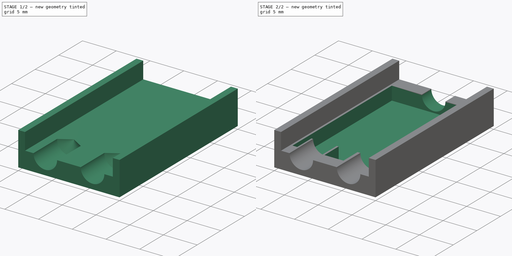
[diagram: build sequence overview — one tinted view per stage of 2, left to right]
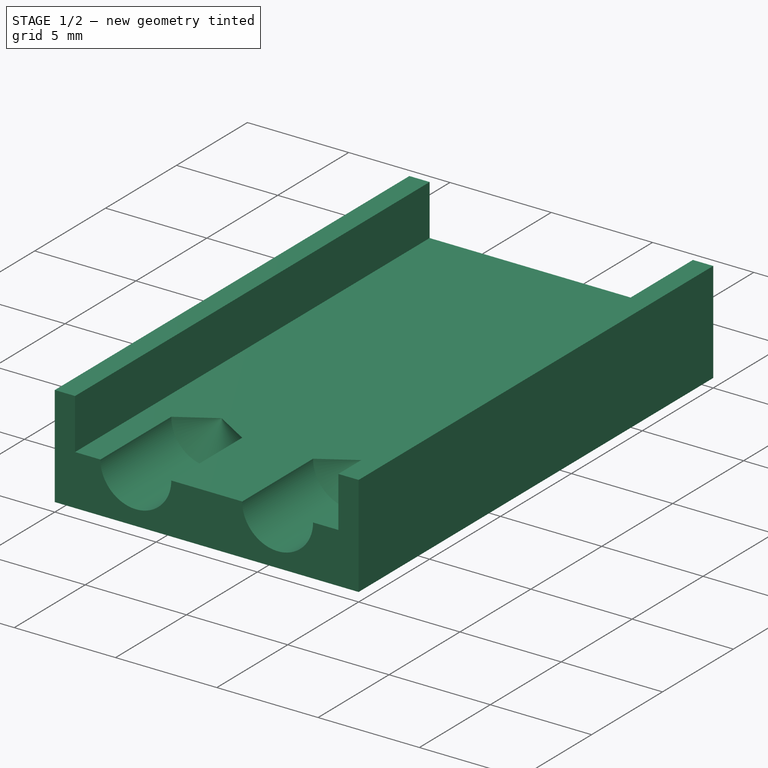
[diagram: stage 1 of 2 — iso view after this stage's code; geometry added in this stage tinted green]
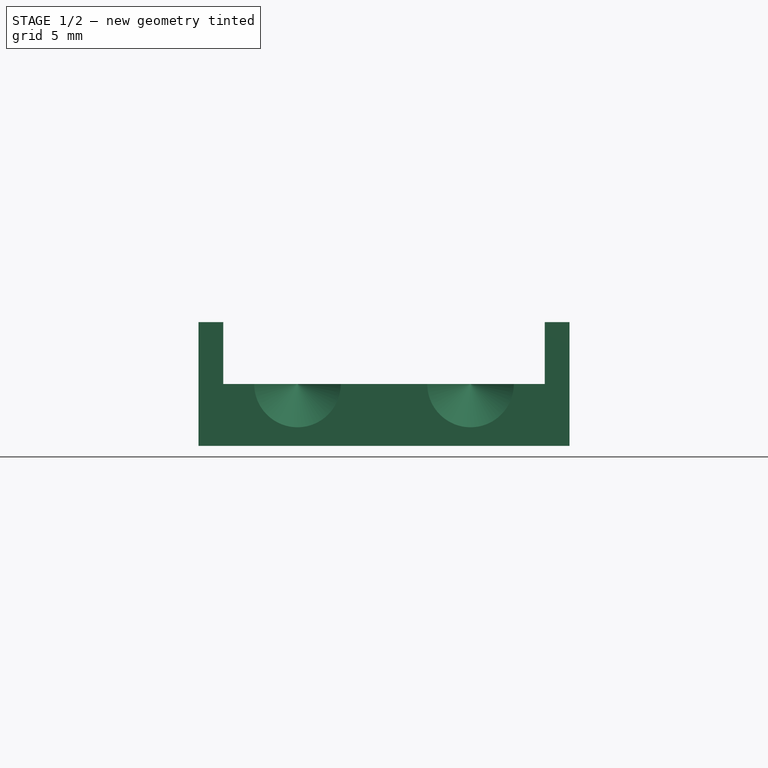
[diagram: stage 1 of 2 — front view after this stage's code; geometry added in this stage tinted green]
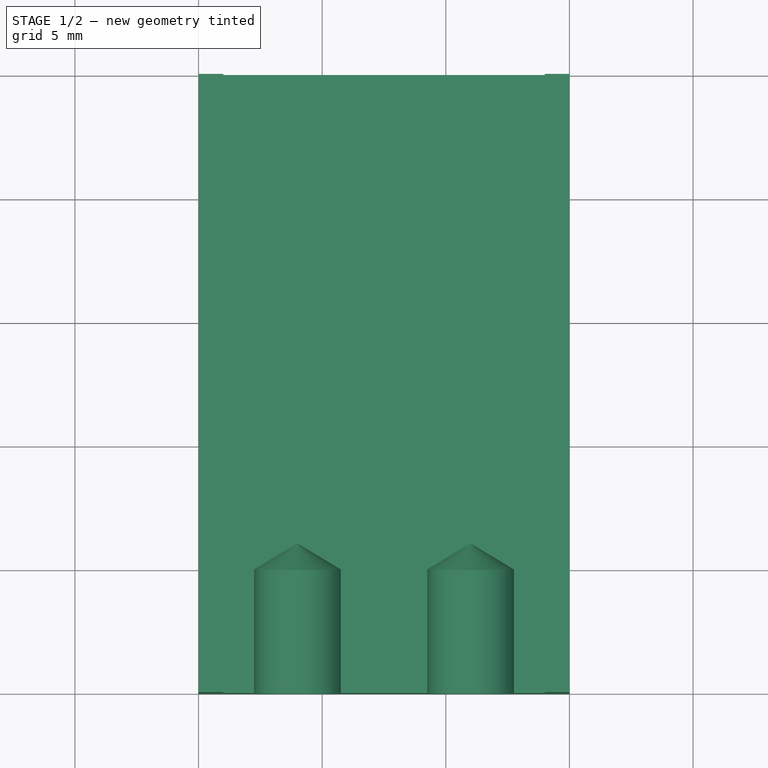
[diagram: stage 1 of 2 — top view after this stage's code; geometry added in this stage tinted green]
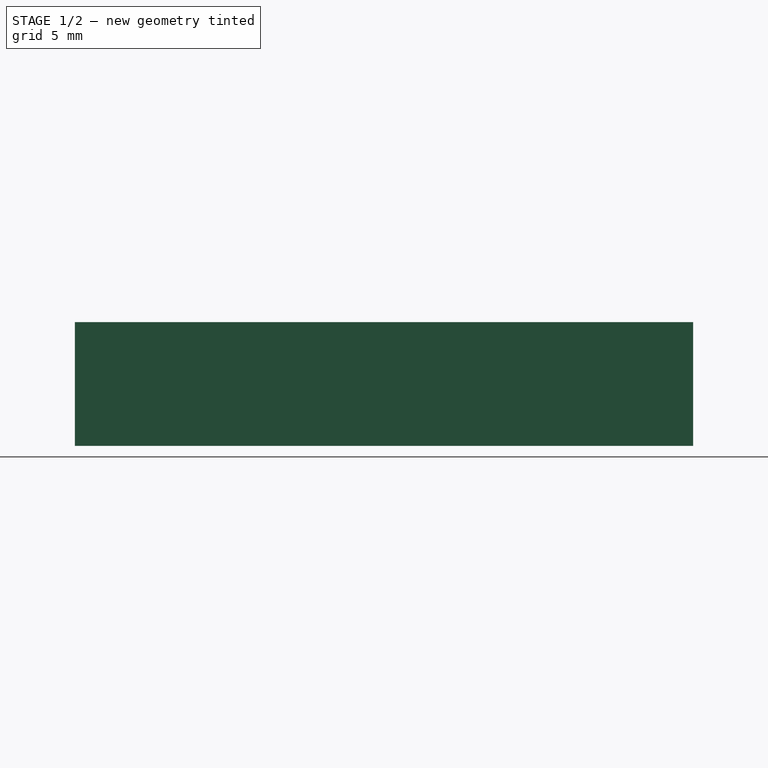
[diagram: stage 1 of 2 — right view after this stage's code; geometry added in this stage tinted green]
FCSTD DOCUMENT  (FreeCAD 0.21R33771 (Git))
Label: IO Audio Adapter
License: All rights reserved
LicenseURL: http://en.wikipedia.org/wiki/All_rights_reserved
objects: Sketcher::SketchObject×5, PartDesign::Hole×2, PartDesign::Body×2, PartDesign::Pad×1, PartDesign::Pocket×1
note: 15 computed .brp shape members not serialized (recipe doc carries the construction recipe); baked Part::Feature solids carry a one-line shape summary decoded from their .brp

FEATURE [Sketcher::SketchObject] Sketch
  FullyConstrained = true
  MapMode = 5
  Placement = pos=(0,0,0) rot=(1,0,0;1.5708rad)
  Support = -> [XZ_Plane]
  sketch-geometry (8):
    g0: LineSegment StartX=0 StartY=0 StartZ=0 EndX=15 EndY=0 EndZ=0
    g1: LineSegment StartX=15 StartY=0 StartZ=0 EndX=15 EndY=5 EndZ=0
    g2: LineSegment StartX=0 StartY=5 StartZ=0 EndX=0 EndY=0 EndZ=0
    g3: LineSegment StartX=14 StartY=5 StartZ=0 EndX=14 EndY=2.5 EndZ=0
    g4: LineSegment StartX=1 StartY=2.5 StartZ=0 EndX=1 EndY=5 EndZ=0
    g5: LineSegment StartX=1 StartY=2.5 StartZ=0 EndX=14 EndY=2.5 EndZ=0
    g6: LineSegment StartX=1 StartY=5 StartZ=0 EndX=0 EndY=5 EndZ=0
    g7: LineSegment StartX=14 StartY=5 StartZ=0 EndX=15 EndY=5 EndZ=0
  constraints (23):
    c: Coincident(g0,g1)
    c: Coincident(g2,g0)
    c: Horizontal(g0)
    c: Vertical(g1)
    c: Vertical(g2)
    c: Coincident(g0,g-1)
    c: DistanceX(g2,g1) = 15
    c: Vertical(g3)
    c: Vertical(g4)
    c: Coincident(g5,g4)
    c: Coincident(g5,g3)
    c: Horizontal(g5)
    c: DistanceY(g0,g1) = 5
    c: Coincident(g6,g4)
    c: Coincident(g6,g2)
    c: Horizontal(g6)
    c: Coincident(g7,g3)
    c: Coincident(g7,g1)
    c: Horizontal(g7)
    c: DistanceX(g2,g4) = 1
    c: DistanceX(g3,g1) = 1
    c: DistanceY(g4,g4) = 2.5
    c: DistanceY(g3,g3) = 2.5
FEATURE [PartDesign::Pad] Pad
  Direction = (0,-1,-2e-16)
  Length = 25
  Length2 = 10
  Placement = pos=(0,0,0) rot=(1,0,0;1.5708rad)
  Profile = -> Sketch
  ReferenceAxis = -> Sketch [N_Axis]
  Type = 0
FEATURE [Sketcher::SketchObject] Sketch001
  FullyConstrained = true
  MapMode = 5
  Placement = pos=(0,-25,-5.6e-15) rot=(1,0,0;1.5708rad)
  Support = -> [Pad]
  sketch-geometry (2):
    g0: Circle CenterX=4 CenterY=2.5 CenterZ=0 NormalX=0 NormalY=0 NormalZ=1 AngleXU=0 Radius=1.75
    g1: Circle CenterX=11 CenterY=2.5 CenterZ=0 NormalX=0 NormalY=0 NormalZ=1 AngleXU=0 Radius=1.75
  constraints (6):
    c: Diameter(g1) = 3.5
    c: Diameter(g0) = 3.5
    c: DistanceX(g0,g1) = 7
    c: DistanceY(g-1,g0) = 2.5
    c: DistanceY(g-1,g1) = 2.5
    c: DistanceX(g-1,g0) = 4
FEATURE [PartDesign::Hole] Hole
  BaseFeature = -> Pad
  CustomThreadClearance = 0
  Depth = 5
  DepthType = 0
  Diameter = 3.5
  DrillForDepth = false
  DrillPoint = 1
  DrillPointAngle = 118
  HoleCutCountersinkAngle = 90
  HoleCutCustomValues = false
  HoleCutDepth = 0
  HoleCutDiameter = 6.1
  HoleCutType = 0
  ModelThread = false
  Placement = pos=(0,0,0) rot=(1,0,0;1.5708rad)
  Profile = -> Sketch001
  Tapered = false
  TaperedAngle = 90
  ThreadClass = 0
  ThreadDepth = 5
  ThreadDepthType = 0
  ThreadDirection = 0
  ThreadFit = 0
  ThreadSize = 0
  ThreadType = 0
  Threaded = false
  UseCustomThreadClearance = false
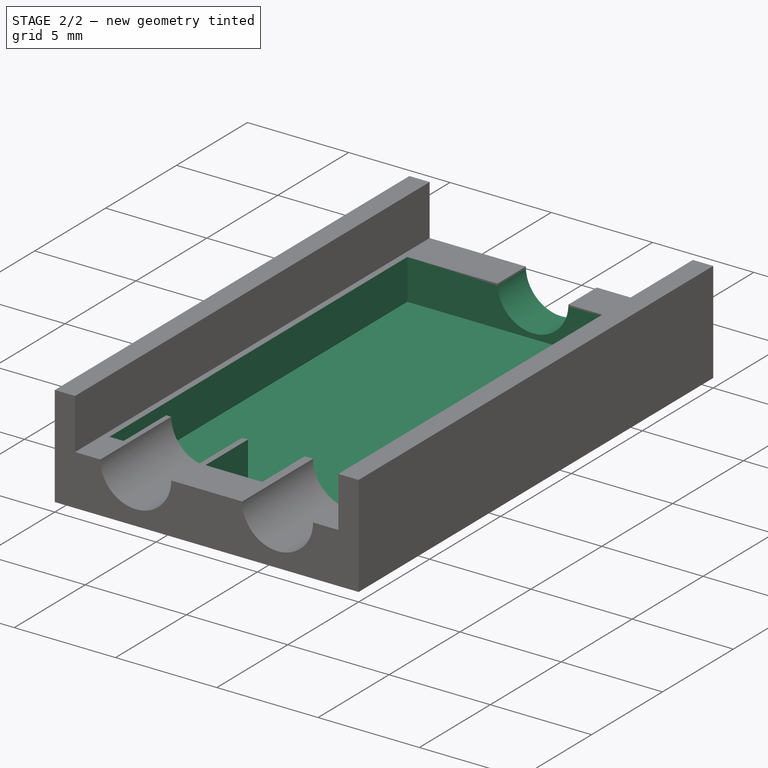
[diagram: stage 2 of 2 — iso view after this stage's code; geometry added in this stage tinted green]
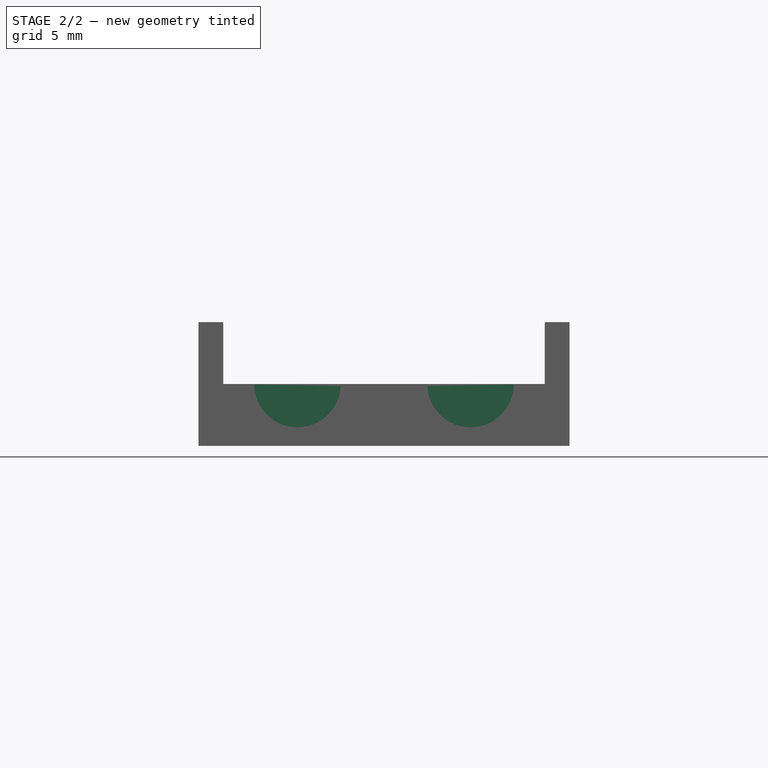
[diagram: stage 2 of 2 — front view after this stage's code; geometry added in this stage tinted green]
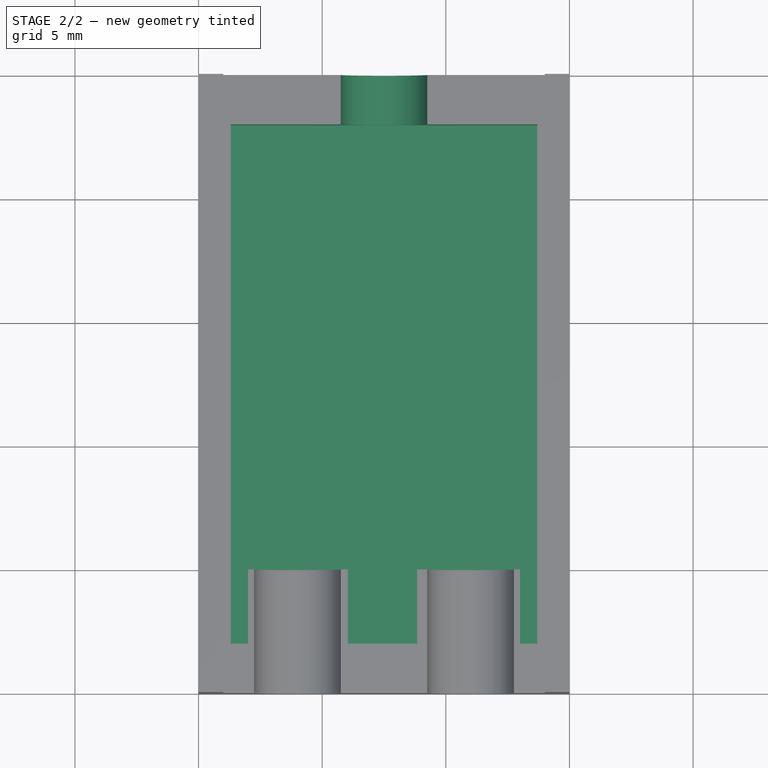
[diagram: stage 2 of 2 — top view after this stage's code; geometry added in this stage tinted green]
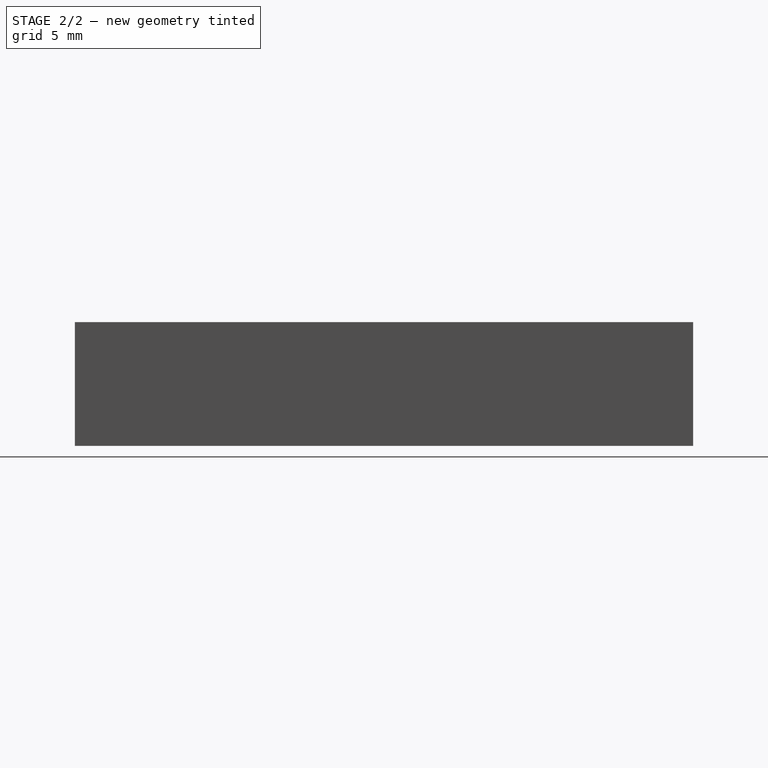
[diagram: stage 2 of 2 — right view after this stage's code; geometry added in this stage tinted green]
FEATURE [Sketcher::SketchObject] Sketch002
  FullyConstrained = true
  MapMode = 5
  Placement = pos=(0,-6e-16,2.5) rot=(0,0,1;3.14159rad)
  Support = -> [Hole]
  sketch-geometry (12):
    g0: LineSegment StartX=-13.7 StartY=23 StartZ=0 EndX=-13 EndY=23 EndZ=0
    g1: LineSegment StartX=-13 StartY=23 StartZ=0 EndX=-13 EndY=20 EndZ=0
    g2: LineSegment StartX=-13 StartY=20 StartZ=0 EndX=-8.84 EndY=20 EndZ=0
    g3: LineSegment StartX=-8.84 StartY=20 StartZ=0 EndX=-8.84 EndY=23 EndZ=0
    g4: LineSegment StartX=-8.84 StartY=23 StartZ=0 EndX=-6.04 EndY=23 EndZ=0
    g5: LineSegment StartX=-6.04 StartY=23 StartZ=0 EndX=-6.04 EndY=20 EndZ=0
    g6: LineSegment StartX=-6.04 StartY=20 StartZ=0 EndX=-2 EndY=20 EndZ=0
    g7: LineSegment StartX=-2 StartY=20 StartZ=0 EndX=-2 EndY=23 EndZ=0
    g8: LineSegment StartX=-2 StartY=23 StartZ=0 EndX=-1.3 EndY=23 EndZ=0
    g9: LineSegment StartX=-1.3 StartY=23 StartZ=0 EndX=-1.3 EndY=2 EndZ=0
    g10: LineSegment StartX=-1.3 StartY=2 StartZ=0 EndX=-13.7 EndY=2 EndZ=0
    g11: LineSegment StartX=-13.7 StartY=2 StartZ=0 EndX=-13.7 EndY=23 EndZ=0
  constraints (36):
    c: Horizontal(g0)
    c: Coincident(g0,g1)
    c: Vertical(g1)
    c: Coincident(g1,g2)
    c: Horizontal(g2)
    c: Coincident(g2,g3)
    c: Vertical(g3)
    c: Coincident(g3,g4)
    c: Horizontal(g4)
    c: Coincident(g4,g5)
    c: Coincident(g5,g6)
    c: Horizontal(g6)
    c: Coincident(g6,g7)
    c: Vertical(g7)
    c: Coincident(g7,g8)
    c: Horizontal(g8)
    c: Coincident(g8,g9)
    c: Vertical(g9)
    c: Coincident(g9,g10)
    c: Horizontal(g10)
    c: Coincident(g10,g11)
    c: Coincident(g11,g0)
    c: Vertical(g11)
    c: Vertical(g5)
    c: DistanceY(g-1,g8) = 23
    c: DistanceY(g-1,g9) = 2
    c: DistanceY(g0) = 23
    c: DistanceY(g-1,g1) = 20
    c: DistanceY(g9,g5) = 18
    c: DistanceX(g9,g-1) = 1.3
    c: DistanceX(g10) = -13.7
    c: DistanceY(g-1,g4) = 23
    c: DistanceX(g0,g0) = 0.7
    c: DistanceX(g4,g4) = 2.8
    c: DistanceX(g8,g8) = 0.7
    c: DistanceX(g6,g6) = 4.04
FEATURE [PartDesign::Pocket] Pocket
  BaseFeature = -> Hole
  Direction = (0,2e-16,-1)
  Length = 2
  Length2 = 5
  Placement = pos=(0,0,0) rot=(1,0,0;1.5708rad)
  Profile = -> Sketch002
  ReferenceAxis = -> Sketch002 [N_Axis]
  Type = 0
FEATURE [Sketcher::SketchObject] Sketch003
  FullyConstrained = true
  MapMode = 5
  Placement = pos=(0,0,0) rot=(-1,0,0;1.5708rad)
  Support = -> [Pocket]
  sketch-geometry (1):
    g0: Circle CenterX=7.5 CenterY=-2.5 CenterZ=0 NormalX=0 NormalY=0 NormalZ=1 AngleXU=0 Radius=1.75
  constraints (3):
    c: Diameter(g0) = 3.5
    c: DistanceY(g0,g-1) = 2.5
    c: DistanceX(g-1,g0) = 7.5
FEATURE [PartDesign::Hole] Hole001
  BaseFeature = -> Pocket
  CustomThreadClearance = 0
  Depth = 2
  DepthType = 0
  Diameter = 3.5
  DrillForDepth = false
  DrillPoint = 1
  DrillPointAngle = 118
  HoleCutCountersinkAngle = 90
  HoleCutCustomValues = false
  HoleCutDepth = 0
  HoleCutDiameter = 6.1
  HoleCutType = 0
  ModelThread = false
  Placement = pos=(0,0,0) rot=(1,0,0;1.5708rad)
  Profile = -> Sketch003
  Tapered = false
  TaperedAngle = 90
  ThreadClass = 0
  ThreadDepth = 2
  ThreadDepthType = 0
  ThreadDirection = 0
  ThreadFit = 0
  ThreadSize = 0
  ThreadType = 0
  Threaded = false
  UseCustomThreadClearance = false
FEATURE [PartDesign::Body] Body  label="Bottom"
  Group = -> [Sketch,Pad,Sketch001,Hole,Sketch002,Pocket,Sketch003,Hole001]
  Origin = -> Origin
  Tip = -> Hole001
FEATURE [Sketcher::SketchObject] Sketch004
  FullyConstrained = true
  MapMode = 5
  Placement = pos=(0,0,0) rot=(1,0,0;1.5708rad)
  Support = -> [XZ_Plane001]
FEATURE [PartDesign::Body] Body001  label="Body"
  Group = -> [Sketch004]
  Origin = -> Origin001
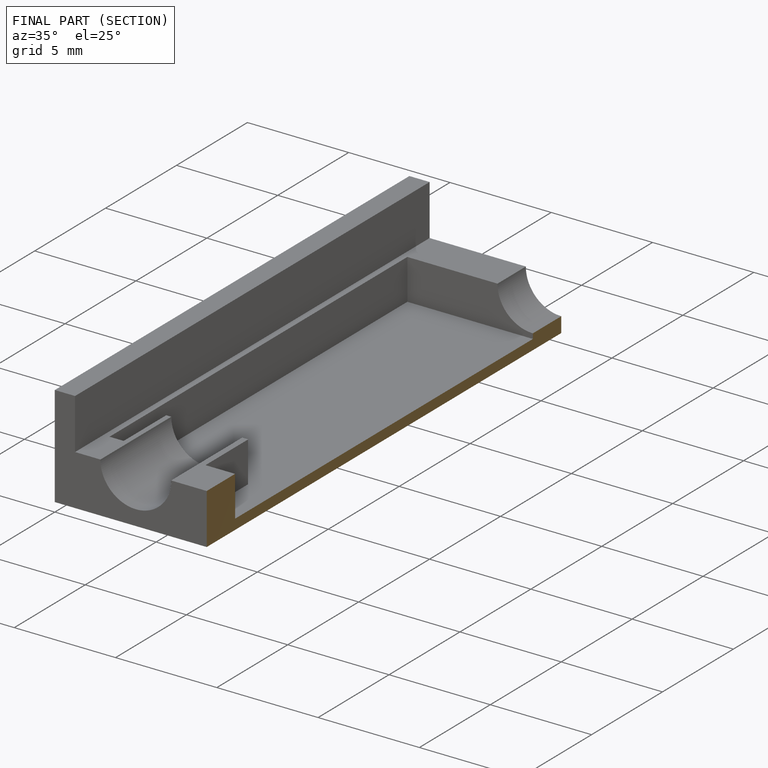
[diagram: finished part — half-section view (interior)]
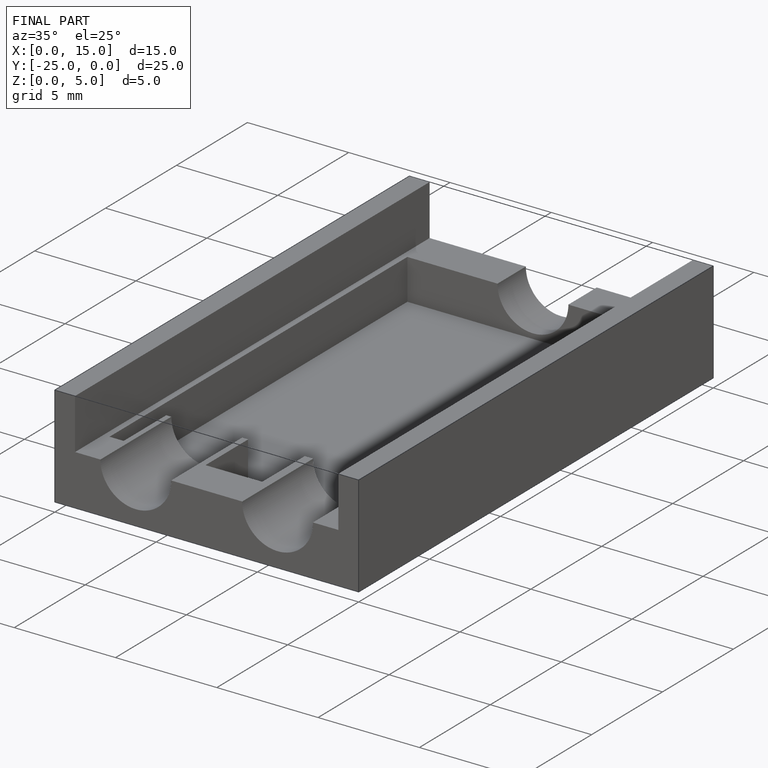
[diagram: finished part — iso view with bounding-box wireframe]
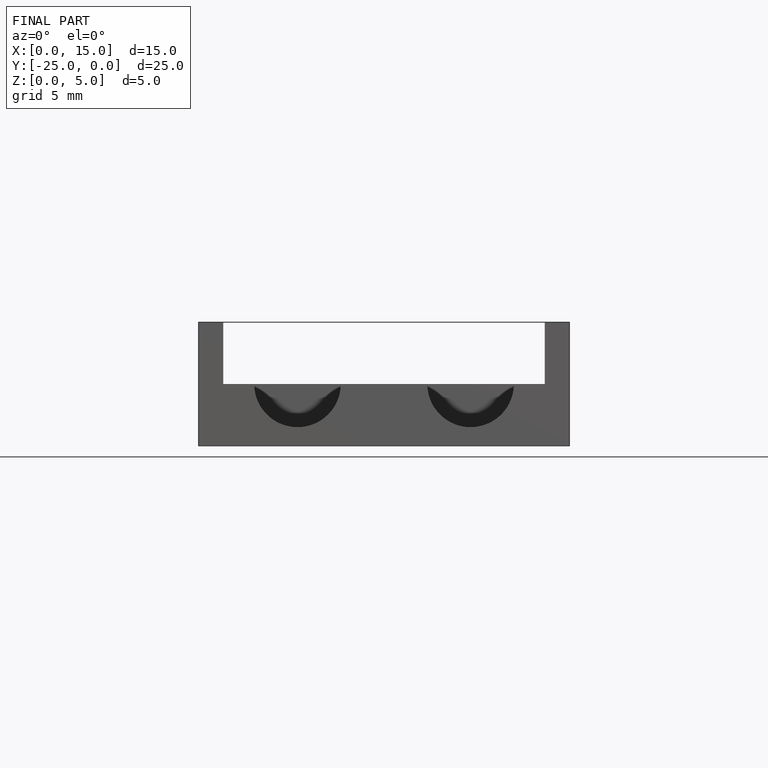
[diagram: finished part — front view with bounding-box wireframe]
